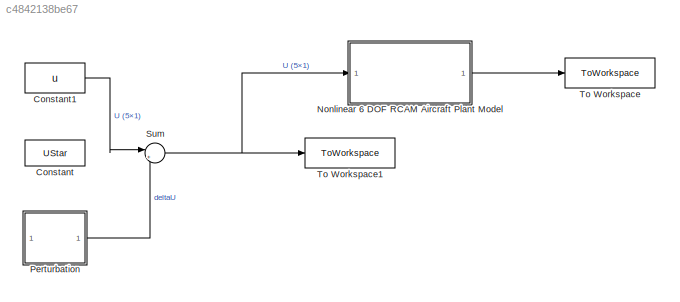
MODEL slx_c4842138be67
KIND model
CONFIG AbsTol = auto
CONFIG EnableMultiTasking = off
CONFIG FixedStep = auto
CONFIG MaxStep = auto
CONFIG MinStep = auto
CONFIG RelTol = 1e-3
CONFIG SampleTimeConstraint = Unconstrained
CONFIG SolverName = VariableStepAuto
CONFIG StartTime = 0.0
CONFIG StopTime = TF
BLOCK [Constant] Constant
  Commented = on
  Value = UStar
BLOCK [Constant] Constant1
  Value = u
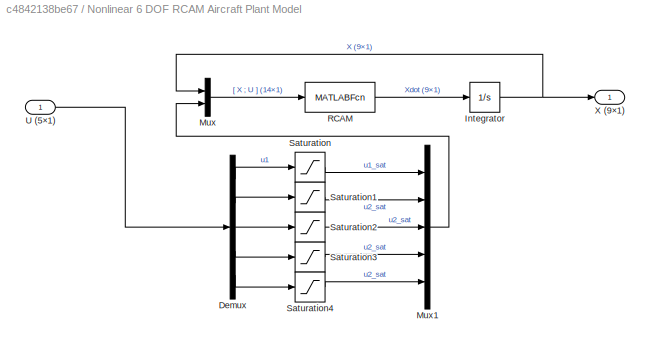
BLOCK [SubSystem] Nonlinear 6 DOF RCAM Aircraft Plant Model
BLOCK [Demux] Nonlinear 6 DOF RCAM Aircraft Plant Model/Demux
  Outputs = 5
BLOCK [Integrator] Nonlinear 6 DOF RCAM Aircraft Plant Model/Integrator
  InitialCondition = x0
BLOCK [Mux] Nonlinear 6 DOF RCAM Aircraft Plant Model/Mux
  DisplayOption = bar
  Inputs = 2
BLOCK [Mux] Nonlinear 6 DOF RCAM Aircraft Plant Model/Mux1
  DisplayOption = bar
  Inputs = 5
BLOCK [MATLABFcn] Nonlinear 6 DOF RCAM Aircraft Plant Model/RCAM
  MATLABFcn = RCAM(u(1:9),u(10:14))
BLOCK [Saturate] Nonlinear 6 DOF RCAM Aircraft Plant Model/Saturation
  LowerLimit = u1min
  UpperLimit = u1max
BLOCK [Saturate] Nonlinear 6 DOF RCAM Aircraft Plant Model/Saturation1
  LowerLimit = u2min
  UpperLimit = u2max
BLOCK [Saturate] Nonlinear 6 DOF RCAM Aircraft Plant Model/Saturation2
  LowerLimit = u3min
  UpperLimit = u3max
BLOCK [Saturate] Nonlinear 6 DOF RCAM Aircraft Plant Model/Saturation3
  LowerLimit = u4min
  UpperLimit = u4max
BLOCK [Saturate] Nonlinear 6 DOF RCAM Aircraft Plant Model/Saturation4
  LowerLimit = u5min
  UpperLimit = u5max
BLOCK [Inport] Nonlinear 6 DOF RCAM Aircraft Plant Model/U (5×1)
BLOCK [Outport] Nonlinear 6 DOF RCAM Aircraft Plant Model/X (9×1)
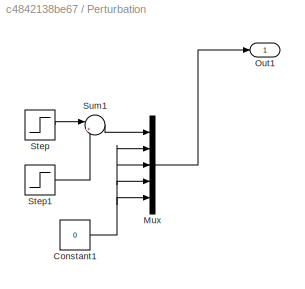
BLOCK [SubSystem] Perturbation
BLOCK [Constant] Perturbation/Constant1
  Value = 0
BLOCK [Mux] Perturbation/Mux
  DisplayOption = bar
  Inputs = 5
BLOCK [Outport] Perturbation/Out1
BLOCK [Step] Perturbation/Step
  After = 5*pi/180
  SampleTime = 0
  Time = 30
BLOCK [Step] Perturbation/Step1
  After = -5*pi/180
  SampleTime = 0
  Time = 30+1
BLOCK [Sum] Perturbation/Sum1
  Inputs = |++
BLOCK [Sum] Sum
  Inputs = |++
BLOCK [ToWorkspace] To Workspace
  FixptAsFi = on
  MaxDataPoints = inf
  SampleTime = -1
  SaveFormat = Timeseries
  VariableName = simX
BLOCK [ToWorkspace] To Workspace1
  FixptAsFi = on
  MaxDataPoints = inf
  SampleTime = -1
  SaveFormat = Timeseries
  VariableName = simU
LINE Constant1:1 -> Sum:1
LINE Nonlinear 6 DOF RCAM Aircraft Plant Model/Demux:1 -> Nonlinear 6 DOF RCAM Aircraft Plant Model/Saturation:1
LINE Nonlinear 6 DOF RCAM Aircraft Plant Model/Demux:2 -> Nonlinear 6 DOF RCAM Aircraft Plant Model/Saturation1:1
LINE Nonlinear 6 DOF RCAM Aircraft Plant Model/Demux:3 -> Nonlinear 6 DOF RCAM Aircraft Plant Model/Saturation2:1
LINE Nonlinear 6 DOF RCAM Aircraft Plant Model/Demux:4 -> Nonlinear 6 DOF RCAM Aircraft Plant Model/Saturation3:1
LINE Nonlinear 6 DOF RCAM Aircraft Plant Model/Demux:5 -> Nonlinear 6 DOF RCAM Aircraft Plant Model/Saturation4:1
NET Nonlinear 6 DOF RCAM Aircraft Plant Model/Integrator:1 -> Nonlinear 6 DOF RCAM Aircraft Plant Model/Mux:1, Nonlinear 6 DOF RCAM Aircraft Plant Model/X (9×1):1
LINE Nonlinear 6 DOF RCAM Aircraft Plant Model/Mux1:1 -> Nonlinear 6 DOF RCAM Aircraft Plant Model/Mux:2
LINE Nonlinear 6 DOF RCAM Aircraft Plant Model/Mux:1 -> Nonlinear 6 DOF RCAM Aircraft Plant Model/RCAM:1
LINE Nonlinear 6 DOF RCAM Aircraft Plant Model/RCAM:1 -> Nonlinear 6 DOF RCAM Aircraft Plant Model/Integrator:1
LINE Nonlinear 6 DOF RCAM Aircraft Plant Model/Saturation1:1 -> Nonlinear 6 DOF RCAM Aircraft Plant Model/Mux1:2
LINE Nonlinear 6 DOF RCAM Aircraft Plant Model/Saturation2:1 -> Nonlinear 6 DOF RCAM Aircraft Plant Model/Mux1:3
LINE Nonlinear 6 DOF RCAM Aircraft Plant Model/Saturation3:1 -> Nonlinear 6 DOF RCAM Aircraft Plant Model/Mux1:4
LINE Nonlinear 6 DOF RCAM Aircraft Plant Model/Saturation4:1 -> Nonlinear 6 DOF RCAM Aircraft Plant Model/Mux1:5
LINE Nonlinear 6 DOF RCAM Aircraft Plant Model/Saturation:1 -> Nonlinear 6 DOF RCAM Aircraft Plant Model/Mux1:1
LINE Nonlinear 6 DOF RCAM Aircraft Plant Model/U (5×1):1 -> Nonlinear 6 DOF RCAM Aircraft Plant Model/Demux:1
LINE Nonlinear 6 DOF RCAM Aircraft Plant Model:1 -> To Workspace:1
NET Perturbation/Constant1:1 -> Perturbation/Mux:2, Perturbation/Mux:3, Perturbation/Mux:4, Perturbation/Mux:5
LINE Perturbation/Mux:1 -> Perturbation/Out1:1
LINE Perturbation/Step1:1 -> Perturbation/Sum1:2
LINE Perturbation/Step:1 -> Perturbation/Sum1:1
LINE Perturbation/Sum1:1 -> Perturbation/Mux:1
LINE Perturbation:1 -> Sum:2
NET Sum:1 -> Nonlinear 6 DOF RCAM Aircraft Plant Model:1, To Workspace1:1
note: NET lines group one-source signal fan-out (src -> all destinations, sorted); 1:1 wires keep LINE
